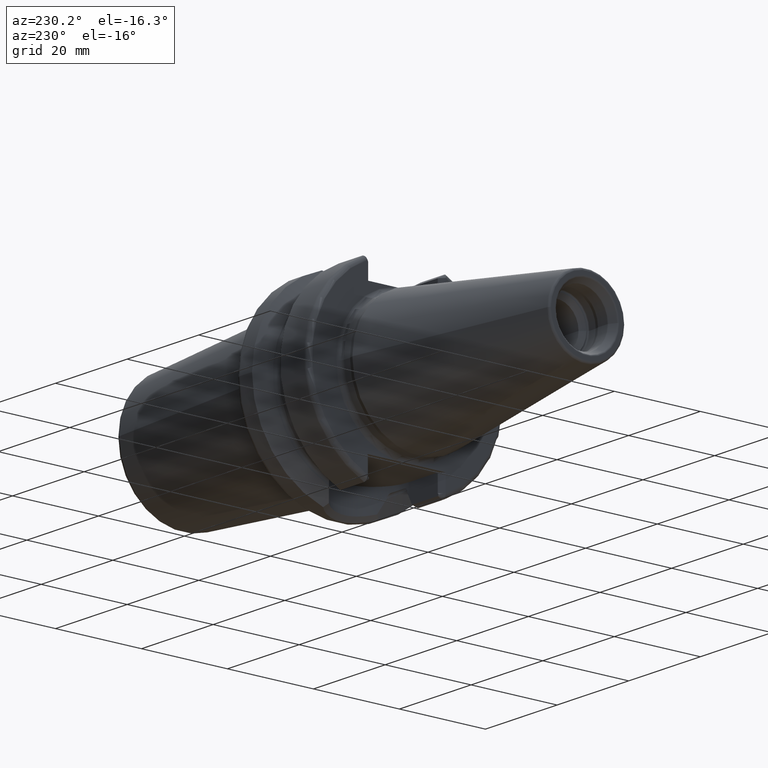
[diagram: clean part render]
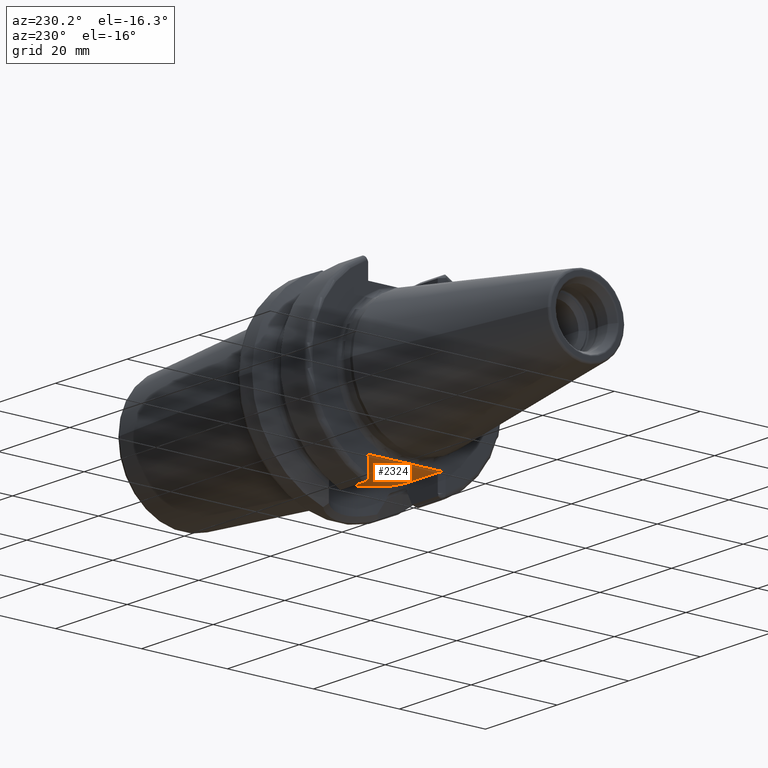
[diagram: same view with one face highlighted and labeled with its STEP entity id]
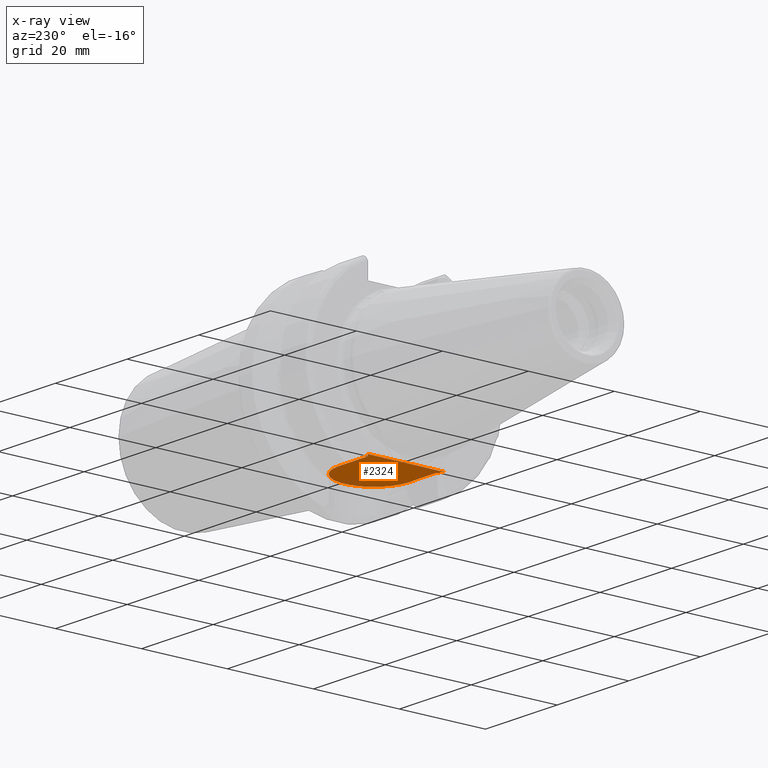
[diagram: x-ray of the same camera — body ghosted, the highlighted face saturated]
A machine part, auxiliary view. The second image highlights one B-rep face of the part: STEP entity #2324.
The next image is the same camera in x-ray: the body ghosted, the highlighted face saturated — about 10% of this face is hidden behind the body in this view.
In plain terms, the highlighted planar face has unit normal (0, 0, 1).
Its self-contained STEP definition (entity closure, byte-faithful):
#116=CARTESIAN_POINT('',(2.E0,2.705203319531E0,-1.615E1));
#117=CARTESIAN_POINT('',(2.E0,2.447526606662E0,-1.615E1));
#118=CARTESIAN_POINT('',(1.994666808081E0,1.932209003313E0,-1.615E1));
#119=CARTESIAN_POINT('',(1.982373677754E0,1.159353659255E0,-1.615E1));
#120=CARTESIAN_POINT('',(1.974023153497E0,3.864772815515E-1,-1.615E1));
#121=CARTESIAN_POINT('',(1.974022947075E0,-3.864455621442E-1,-1.615E1));
#122=CARTESIAN_POINT('',(1.982373315248E0,-1.159330607093E0,-1.615E1));
#123=CARTESIAN_POINT('',(1.994666672291E0,-1.932198796155E0,-1.615E1));
#124=CARTESIAN_POINT('',(2.E0,-2.447523240675E0,-1.615E1));
#125=CARTESIAN_POINT('',(2.E0,-2.705203319531E0,-1.615E1));
#147=DIRECTION('',(7.071067811865E-1,-7.071067811865E-1,0.E0));
#148=VECTOR('',#147,1.414213562373E0);
#149=CARTESIAN_POINT('',(2.E0,9.095E0,-1.615E1));
#150=LINE('',#149,#148);
#724=DIRECTION('',(-7.071067811865E-1,-7.071067811865E-1,0.E0));
#725=VECTOR('',#724,1.414213562373E0);
#726=CARTESIAN_POINT('',(3.E0,-8.095E0,-1.615E1));
#727=LINE('',#726,#725);
#728=DIRECTION('',(-1.E0,0.E0,0.E0));
#729=VECTOR('',#728,8.155E0);
#730=CARTESIAN_POINT('',(1.1155E1,8.095E0,-1.615E1));
#731=LINE('',#730,#729);
#732=DIRECTION('',(0.E0,-1.E0,0.E0));
#733=VECTOR('',#732,6.389796680469E0);
#734=CARTESIAN_POINT('',(2.E0,9.095E0,-1.615E1));
#735=LINE('',#734,#733);
#736=DIRECTION('',(0.E0,-1.E0,0.E0));
#737=VECTOR('',#736,6.389796680469E0);
#738=CARTESIAN_POINT('',(2.E0,-2.705203319531E0,-1.615E1));
#739=LINE('',#738,#737);
#740=DIRECTION('',(1.E0,0.E0,0.E0));
#741=VECTOR('',#740,8.155E0);
#742=CARTESIAN_POINT('',(3.E0,-8.095E0,-1.615E1));
#743=LINE('',#742,#741);
#744=CARTESIAN_POINT('',(1.1155E1,0.E0,-1.615E1));
#745=DIRECTION('',(0.E0,0.E0,1.E0));
#746=DIRECTION('',(0.E0,-1.E0,0.E0));
#747=AXIS2_PLACEMENT_3D('',#744,#745,#746);
#1284=CARTESIAN_POINT('',(1.1155E1,-8.095E0,-1.615E1));
#1285=CARTESIAN_POINT('',(1.1155E1,8.095E0,-1.615E1));
#1286=VERTEX_POINT('',#1284);
#1287=VERTEX_POINT('',#1285);
#1288=CARTESIAN_POINT('',(2.E0,2.705203319531E0,-1.615E1));
#1289=VERTEX_POINT('',#1288);
#1290=CARTESIAN_POINT('',(2.E0,-2.705203319531E0,-1.615E1));
#1291=VERTEX_POINT('',#1290);
#1333=CARTESIAN_POINT('',(3.E0,8.095E0,-1.615E1));
#1335=VERTEX_POINT('',#1333);
#1337=CARTESIAN_POINT('',(2.E0,9.095E0,-1.615E1));
#1339=VERTEX_POINT('',#1337);
#1343=CARTESIAN_POINT('',(2.E0,-9.095E0,-1.615E1));
#1344=VERTEX_POINT('',#1343);
#1345=CARTESIAN_POINT('',(3.E0,-8.095E0,-1.615E1));
#1347=VERTEX_POINT('',#1345);
#2309=CARTESIAN_POINT('',(0.E0,0.E0,-1.615E1));
#2310=DIRECTION('',(0.E0,0.E0,1.E0));
#2311=DIRECTION('',(1.E0,0.E0,0.E0));
#2312=AXIS2_PLACEMENT_3D('',#2309,#2310,#2311);
#2313=PLANE('',#2312);
#2314=ORIENTED_EDGE('',*,*,#1599,.T.);
#2315=ORIENTED_EDGE('',*,*,#1582,.F.);
#2316=ORIENTED_EDGE('',*,*,#1546,.T.);
#2317=ORIENTED_EDGE('',*,*,#1525,.T.);
#2318=ORIENTED_EDGE('',*,*,#1558,.T.);
#2319=ORIENTED_EDGE('',*,*,#2304,.F.);
#2320=ORIENTED_EDGE('',*,*,#1725,.T.);
#2321=ORIENTED_EDGE('',*,*,#1760,.T.);
#2322=EDGE_LOOP('',(#2314,#2315,#2316,#2317,#2318,#2319,#2320,#2321));
#2323=FACE_OUTER_BOUND('',#2322,.F.);
#2324=ADVANCED_FACE('',(#2323),#2313,.F.);
#126=B_SPLINE_CURVE_WITH_KNOTS('',3,(#116,#117,#118,#119,#120,#121,#122,#123,
#124,#125),.UNSPECIFIED.,.F.,.F.,(4,1,1,1,1,1,1,4),(0.E0,1.428571428571E-1,
2.857142857143E-1,4.285714285714E-1,5.714285714286E-1,7.142857142857E-1,
8.571428571429E-1,1.E0),.UNSPECIFIED.);
#748=CIRCLE('',#747,8.095E0);
#1525=EDGE_CURVE('',#1289,#1291,#126,.T.);
#1546=EDGE_CURVE('',#1339,#1289,#735,.T.);
#1558=EDGE_CURVE('',#1291,#1344,#739,.T.);
#1582=EDGE_CURVE('',#1339,#1335,#150,.T.);
#1599=EDGE_CURVE('',#1287,#1335,#731,.T.);
#1725=EDGE_CURVE('',#1347,#1286,#743,.T.);
#1760=EDGE_CURVE('',#1286,#1287,#748,.T.);
#2304=EDGE_CURVE('',#1347,#1344,#727,.T.);